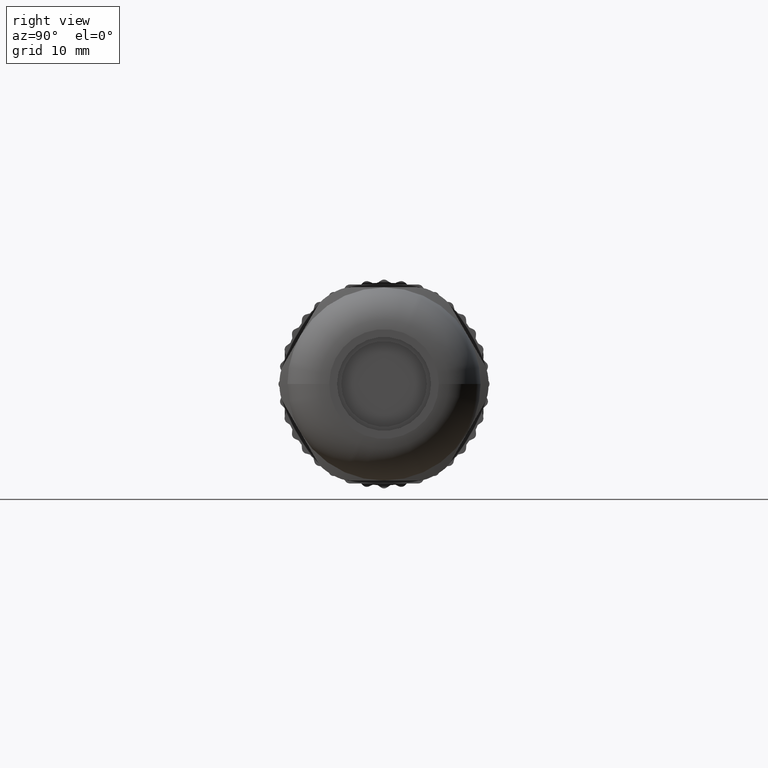
[diagram: clean part render]
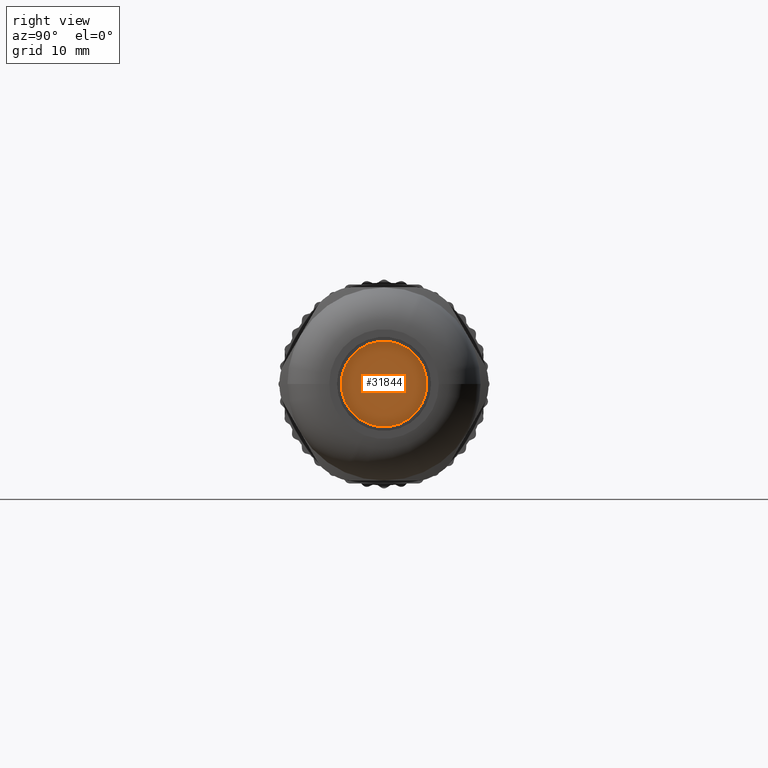
[diagram: same view with one face highlighted and labeled with its STEP entity id]
A machine part, right view. The second image highlights one B-rep face of the part: STEP entity #31844.
In plain terms, the highlighted planar face has unit normal (-1, 0, 0).
Its self-contained STEP definition (entity closure, byte-faithful):
#9080=CARTESIAN_POINT('',(5.45E1,0.E0,0.E0));
#9081=DIRECTION('',(1.E0,0.E0,0.E0));
#9082=DIRECTION('',(0.E0,-1.E0,0.E0));
#9083=AXIS2_PLACEMENT_3D('',#9080,#9081,#9082);
#9093=CARTESIAN_POINT('',(5.45E1,0.E0,0.E0));
#9094=DIRECTION('',(1.E0,0.E0,0.E0));
#9095=DIRECTION('',(0.E0,1.E0,0.E0));
#9096=AXIS2_PLACEMENT_3D('',#9093,#9094,#9095);
#23277=CARTESIAN_POINT('',(5.45E1,4.1E0,0.E0));
#23278=CARTESIAN_POINT('',(5.45E1,-4.1E0,0.E0));
#23279=VERTEX_POINT('',#23277);
#23280=VERTEX_POINT('',#23278);
#31834=CARTESIAN_POINT('',(5.45E1,0.E0,0.E0));
#31835=DIRECTION('',(-1.E0,0.E0,0.E0));
#31836=DIRECTION('',(0.E0,-1.E0,0.E0));
#31837=AXIS2_PLACEMENT_3D('',#31834,#31835,#31836);
#31838=PLANE('',#31837);
#31840=ORIENTED_EDGE('',*,*,#31839,.F.);
#31841=ORIENTED_EDGE('',*,*,#31824,.F.);
#31842=EDGE_LOOP('',(#31840,#31841));
#31843=FACE_OUTER_BOUND('',#31842,.F.);
#31844=ADVANCED_FACE('',(#31843),#31838,.F.);
#9084=CIRCLE('',#9083,4.1E0);
#9097=CIRCLE('',#9096,4.1E0);
#31824=EDGE_CURVE('',#23280,#23279,#9084,.T.);
#31839=EDGE_CURVE('',#23279,#23280,#9097,.T.);